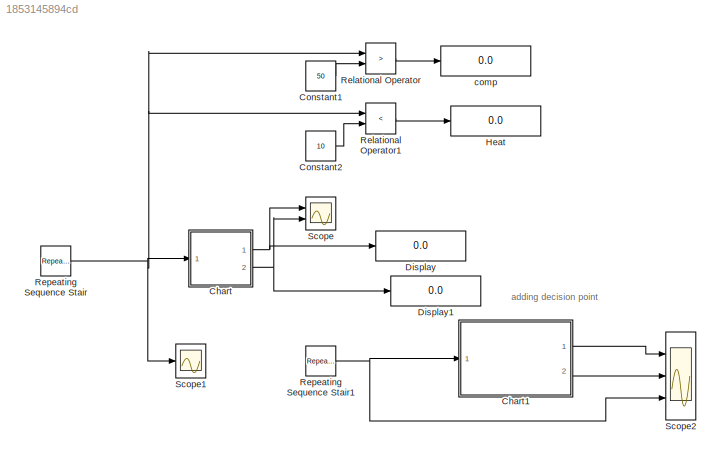
MODEL slx_1853145894cd
KIND model
CONFIG AbsTol = auto
CONFIG EnableMultiTasking = off
CONFIG FixedStep = auto
CONFIG MaxStep = auto
CONFIG MinStep = auto
CONFIG RelTol = 1e-3
CONFIG SampleTimeConstraint = Unconstrained
CONFIG Solver = VariableStepAuto
CONFIG SolverName = VariableStepAuto
CONFIG StartTime = 0.0
CONFIG StopTime = 10.0
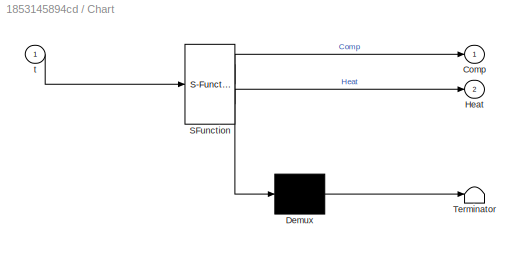
BLOCK [SubSystem] Chart
  ErrorFcn = Stateflow.Translate.translate
  PermitHierarchicalResolution = ExplicitOnly
  Ports = [1, 2]
  RequestExecContextInheritance = off
  SFBlockType = Chart
  TreatAsAtomicUnit = on
  Variant = off
BLOCK [Demux] Chart/ Demux 
  Outputs = 1
  Ports = [1, 1]
BLOCK [S-Function] Chart/ SFunction 
  EnableBusSupport = on
  FunctionName = sf_sfun
  PortCounts = [1 3]
  Ports = [1, 3]
  SFcnIsStateOwnerBlock = off
  SFunctionDeploymentMode = off
  Tag = Stateflow S-Function Compressor_Heater_Stateflow 3
BLOCK [Terminator] Chart/ Terminator 
BLOCK [Outport] Chart/Comp
  IconDisplay = Port number
BLOCK [Outport] Chart/Heat
  IconDisplay = Port number
  Port = 2
BLOCK [Inport] Chart/t
  IconDisplay = Port number
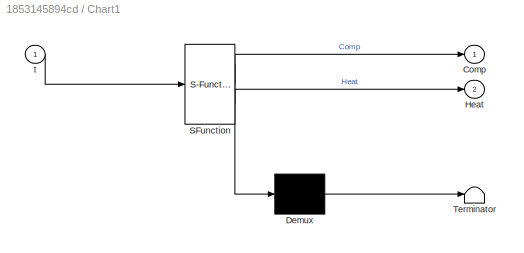
BLOCK [SubSystem] Chart1
  ErrorFcn = Stateflow.Translate.translate
  PermitHierarchicalResolution = ExplicitOnly
  Ports = [1, 2]
  RequestExecContextInheritance = off
  SFBlockType = Chart
  TreatAsAtomicUnit = on
  Variant = off
BLOCK [Demux] Chart1/ Demux 
  Outputs = 1
  Ports = [1, 1]
BLOCK [S-Function] Chart1/ SFunction 
  EnableBusSupport = on
  FunctionName = sf_sfun
  PortCounts = [1 3]
  Ports = [1, 3]
  SFcnIsStateOwnerBlock = off
  SFunctionDeploymentMode = off
  Tag = Stateflow S-Function Compressor_Heater_Stateflow 1
BLOCK [Terminator] Chart1/ Terminator 
BLOCK [Outport] Chart1/Comp
  IconDisplay = Port number
BLOCK [Outport] Chart1/Heat
  IconDisplay = Port number
  Port = 2
BLOCK [Inport] Chart1/t
  IconDisplay = Port number
BLOCK [Constant] Constant1
  Value = 50
BLOCK [Constant] Constant2
  Value = 10
BLOCK [Display] Display
  Decimation = 1
  Ports = [1]
BLOCK [Display] Display1
  Decimation = 1
  Ports = [1]
BLOCK [Display] Heat
  Decimation = 1
  Ports = [1]
BLOCK [RelationalOperator] Relational Operator
  InputSameDT = off
  Operator = >
  OutDataTypeStr = boolean
  Ports = [2, 1]
  RndMeth = Simplest
BLOCK [RelationalOperator] Relational Operator1
  InputSameDT = off
  Operator = <
  OutDataTypeStr = boolean
  Ports = [2, 1]
  RndMeth = Simplest
BLOCK [Reference] Repeating Sequence Stair  REF=simulink/Sources/Repeating
Sequence
Stair
  Ports = [0, 1]
  SourceBlock = simulink/Sources/Repeating\nSequence\nStair
  SourceProductBaseCode = SL
  SourceProductName = Simulink
  SourceType = Repeating Sequence Stair
BLOCK [Reference] Repeating Sequence Stair1  REF=simulink/Sources/Repeating
Sequence
Stair
  Ports = [0, 1]
  SourceBlock = simulink/Sources/Repeating\nSequence\nStair
  SourceProductBaseCode = SL
  SourceProductName = Simulink
  SourceType = Repeating Sequence Stair
BLOCK [Scope] Scope
  NumInputPorts = 2
  Ports = [2]
  ScopeSpecificationString = Simulink.scopes.TimeScopeBlockCfg('CurrentConfiguration', extmgr.ConfigurationSet(extmgr.Configuration('Core','General UI',true),extmgr.Configuration('Core','Source UI',true),extmgr.Configuration('Sources','WiredSimulink',true),extmgr.Configuration('Visuals','Time Domain',true,'SerializedDisplays',{struct('MinYLimReal','-0.125','MaxYLimReal','1.125','YLabelReal','','MinYLimMag','0.00000','MaxYLimM...<+1364ch>
BLOCK [Scope] Scope1
  NumInputPorts = 1
  Ports = [1]
  ScopeSpecificationString = Simulink.scopes.TimeScopeBlockCfg('CurrentConfiguration', extmgr.ConfigurationSet(extmgr.Configuration('Core','General UI',true),extmgr.Configuration('Core','Source UI',true),extmgr.Configuration('Sources','WiredSimulink',true,'DataLoggingVariableName','ScopeData1'),extmgr.Configuration('Visuals','Time Domain',true,'SerializedDisplays',{struct('MinYLimReal','-7.5','MaxYLimReal','67.5','YLabelReal'...<+1399ch>
BLOCK [Scope] Scope2
  NumInputPorts = 3
  Ports = [3]
  ScopeSpecificationString = Simulink.scopes.TimeScopeBlockCfg('CurrentConfiguration', extmgr.ConfigurationSet(extmgr.Configuration('Core','General UI',true),extmgr.Configuration('Core','Source UI',true),extmgr.Configuration('Sources','WiredSimulink',true,'DataLoggingVariableName','ScopeData1'),extmgr.Configuration('Visuals','Time Domain',true,'SerializedDisplays',{struct('MinYLimReal','-0.125','MaxYLimReal','1.125','YLabelRe...<+2685ch>
BLOCK [Display] comp
  Decimation = 1
  Ports = [1]
ANNOTATION (root): adding decision point
LINE Chart1:1 -> Scope2:1
LINE Chart1:2 -> Scope2:2
NET Chart:1 -> Display:1, Scope:1
NET Chart:2 -> Display1:1, Scope:2
LINE Constant1:1 -> Relational Operator:2
LINE Constant2:1 -> Relational Operator1:2
LINE Relational Operator1:1 -> Heat:1
LINE Relational Operator:1 -> comp:1
NET Repeating Sequence Stair1:1 -> Chart1:1, Scope2:3
NET Repeating Sequence Stair:1 -> Chart:1, Relational Operator1:1, Relational Operator:1, Scope1:1
note: NET lines group one-source signal fan-out (src -> all destinations, sorted); 1:1 wires keep LINE
CHART Chart1 states=3 transitions=10
  STATE_LABEL 'Default_state\nentry:\nComp=0;\nHeat = 0;\n'
  STATE_LABEL 'Heater_on\nentry:\nHeat=1;\nduring:\nHeat=1;\nexit:\nHeat = 0;'
  STATE_LABEL 'Compressor_on\nentry:\nComp=1;\nduring:\nComp =1;\nexit:\nComp =0;\n'
CHART Chart states=3 transitions=7
  STATE_LABEL 'Default_state\nentry:\nComp=0;\nHeat = 0;\n'
  STATE_LABEL 'Heater_on\nentry:\nHeat=1;\nduring:\nHeat=1;\nexit:\nHeat = 0;'
  STATE_LABEL 'Compressor_on\nentry:\nComp=1;\nduring:\nComp =1;\nexit:\nComp =0;\n'
